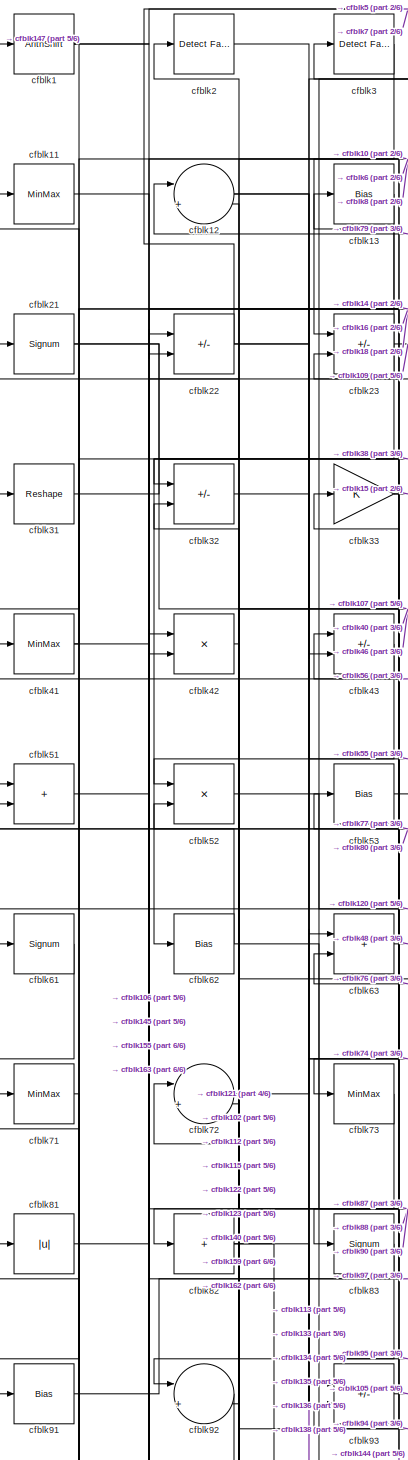
[diagram: root canvas - part 1/6, top left region]
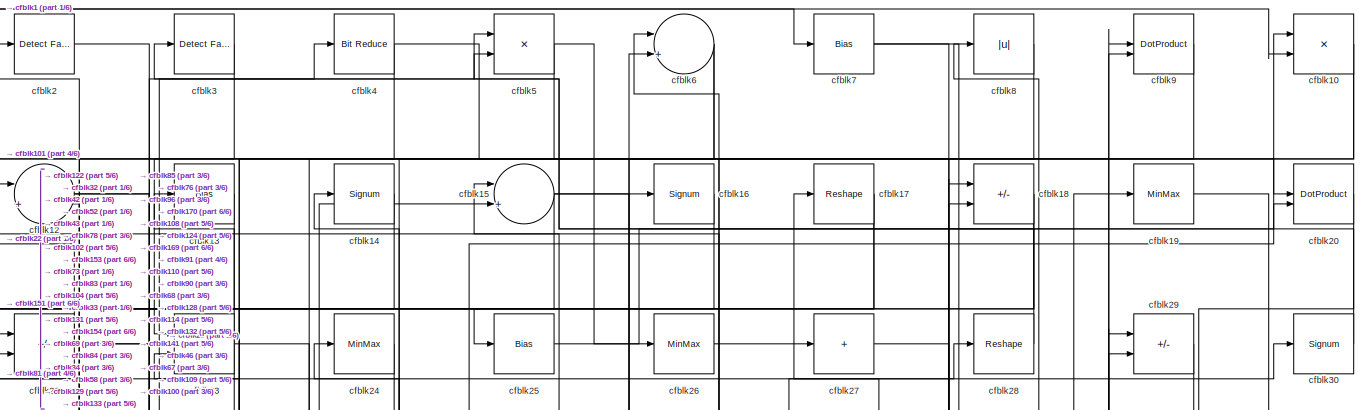
[diagram: root canvas - part 2/6, full width, top band]
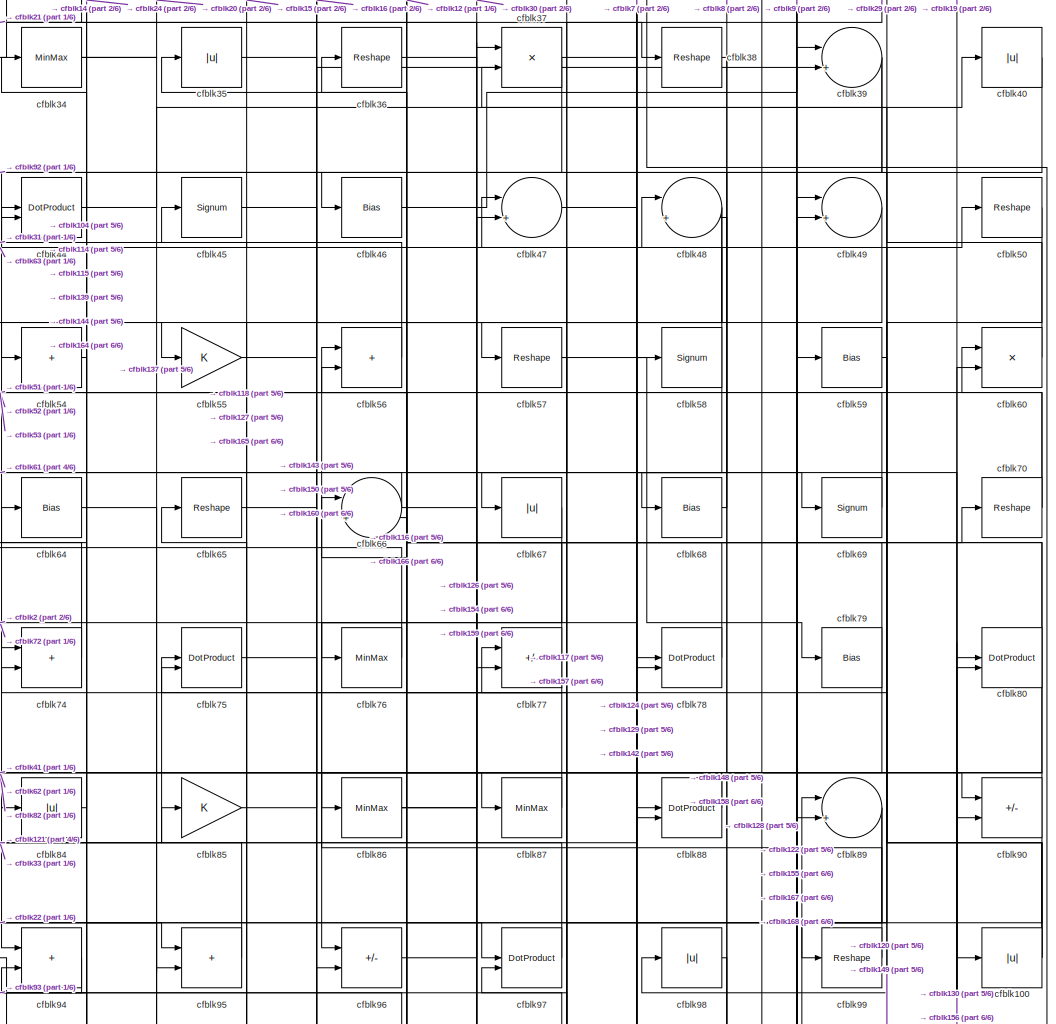
[diagram: root canvas - part 3/6, central region]
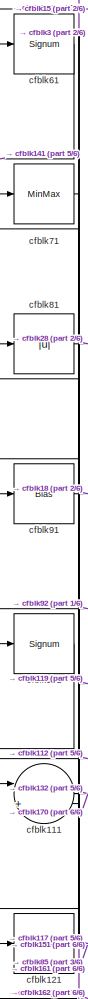
[diagram: root canvas - part 4/6, middle left region]
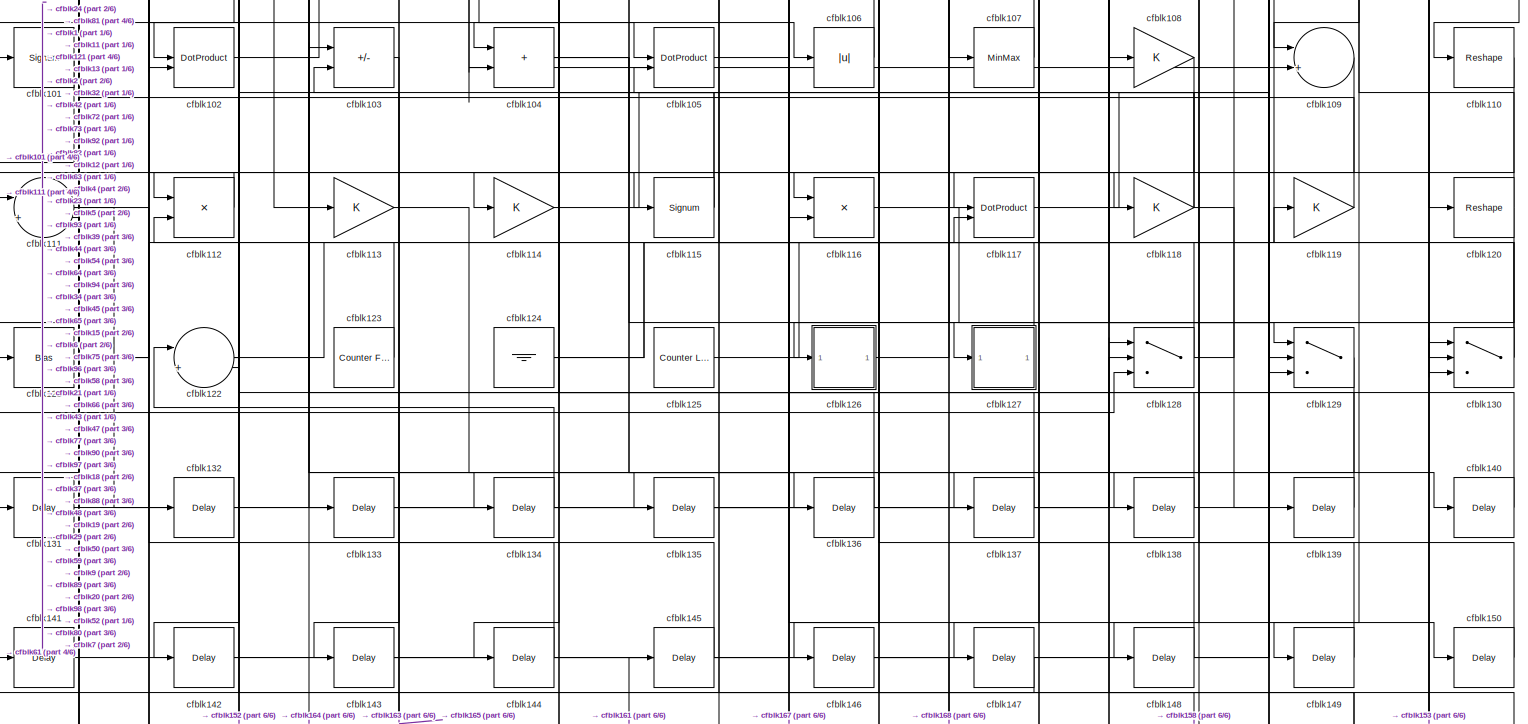
[diagram: root canvas - part 5/6, full width, bottom band]
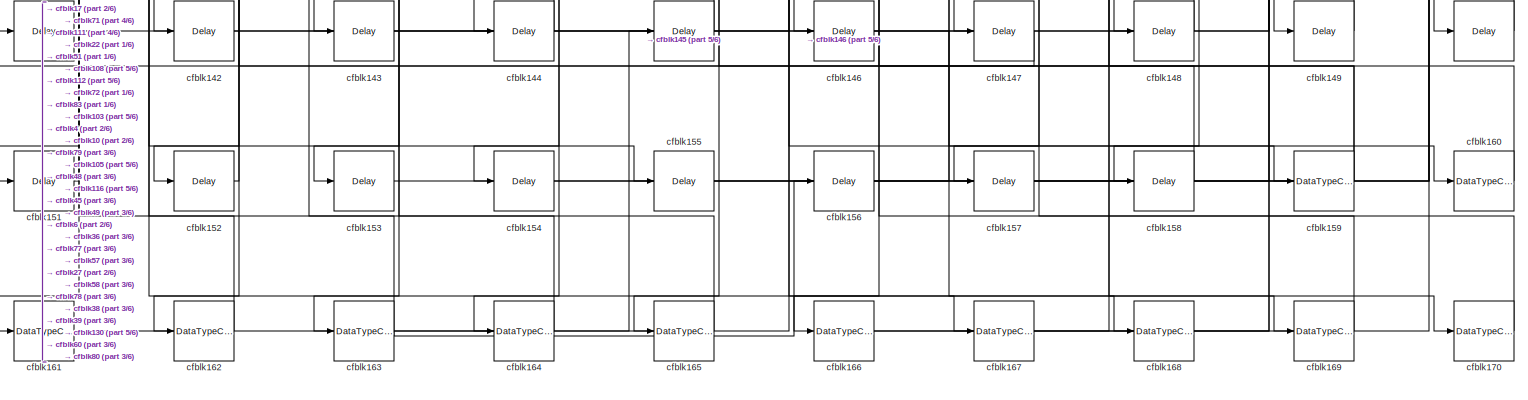
[diagram: root canvas - part 6/6, full width, bottom band]
MODEL slx_be887b28f00f
KIND model
CONFIG AbsTol = auto
CONFIG EnableMultiTasking = off
CONFIG FixedStep = auto
CONFIG MaxStep = auto
CONFIG MinStep = auto
CONFIG RelTol = 1e-3
CONFIG SampleTimeConstraint = Unconstrained
CONFIG SolverName = VariableStepAuto
CONFIG StartTime = 0.0
CONFIG StopTime = 10.0
BLOCK [ArithShift] cfblk1
  BitShiftNumber = 8
  InputPortMap = u0
BLOCK [Product] cfblk10
  Inputs = */
  RndMeth = Zero
  SaturateOnIntegerOverflow = on
BLOCK [Abs] cfblk100
  SaturateOnIntegerOverflow = off
BLOCK [Signum] cfblk101
BLOCK [DotProduct] cfblk102
  OutDataTypeStr = Inherit: Inherit via internal rule
BLOCK [Sum] cfblk103
  IconShape = rectangular
  Inputs = +-
BLOCK [Sum] cfblk104
  IconShape = rectangular
BLOCK [DotProduct] cfblk105
  OutDataTypeStr = Inherit: Inherit via internal rule
BLOCK [Abs] cfblk106
  SaturateOnIntegerOverflow = off
BLOCK [MinMax] cfblk107
BLOCK [Gain] cfblk108
BLOCK [Sum] cfblk109
  Inputs = |++
BLOCK [MinMax] cfblk11
BLOCK [Reshape] cfblk110
BLOCK [Sum] cfblk111
  Inputs = |++
BLOCK [Product] cfblk112
  Inputs = */
  RndMeth = Zero
  SaturateOnIntegerOverflow = on
BLOCK [Gain] cfblk113
BLOCK [Gain] cfblk114
BLOCK [Signum] cfblk115
BLOCK [Product] cfblk116
  Inputs = */
  RndMeth = Zero
  SaturateOnIntegerOverflow = on
BLOCK [DotProduct] cfblk117
  OutDataTypeStr = Inherit: Inherit via internal rule
BLOCK [Gain] cfblk118
BLOCK [Gain] cfblk119
BLOCK [Sum] cfblk12
  Inputs = |++
BLOCK [Reshape] cfblk120
BLOCK [Bias] cfblk121
  Bias = 0.0
  SaturateOnIntegerOverflow = off
BLOCK [Sum] cfblk122
  Inputs = |++
BLOCK [Reference] cfblk123  REF=hdlsllib/Sources/Counter
Free-Running
  SourceBlock = hdlsllib/Sources/Counter\nFree-Running
  SourceType = Counter Free-Running
BLOCK [Ground] cfblk124
BLOCK [Reference] cfblk125  REF=hdlsllib/Sources/Counter
Limited
  SourceBlock = hdlsllib/Sources/Counter\nLimited
  SourceType = Counter Limited
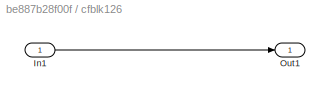
BLOCK [SubSystem] cfblk126
  LibrarySourceBlock = hdlsllib/Ports &\nSubsystems/Subsystem
BLOCK [Inport] cfblk126/In1
BLOCK [Outport] cfblk126/Out1
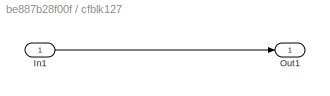
BLOCK [SubSystem] cfblk127
  LibrarySourceBlock = hdlsllib/Ports &\nSubsystems/Subsystem
BLOCK [Inport] cfblk127/In1
BLOCK [Outport] cfblk127/Out1
BLOCK [Switch] cfblk128
  InputSameDT = off
  SaturateOnIntegerOverflow = off
BLOCK [Switch] cfblk129
  InputSameDT = off
  SaturateOnIntegerOverflow = off
BLOCK [Bias] cfblk13
  Bias = 0.0
  SaturateOnIntegerOverflow = off
BLOCK [Switch] cfblk130
  InputSameDT = off
  SaturateOnIntegerOverflow = off
BLOCK [Delay] cfblk131
  InputPortMap = u0
  SampleTime = 1
BLOCK [Delay] cfblk132
  InputPortMap = u0
  SampleTime = 1
BLOCK [Delay] cfblk133
  InputPortMap = u0
  SampleTime = 1
BLOCK [Delay] cfblk134
  InputPortMap = u0
  SampleTime = 1
BLOCK [Delay] cfblk135
  InputPortMap = u0
  SampleTime = 1
BLOCK [Delay] cfblk136
  InputPortMap = u0
  SampleTime = 1
BLOCK [Delay] cfblk137
  InputPortMap = u0
  SampleTime = 1
BLOCK [Delay] cfblk138
  InputPortMap = u0
  SampleTime = 1
BLOCK [Delay] cfblk139
  InputPortMap = u0
  SampleTime = 1
BLOCK [Signum] cfblk14
BLOCK [Delay] cfblk140
  InputPortMap = u0
  SampleTime = 1
BLOCK [Delay] cfblk141
  InputPortMap = u0
  SampleTime = 1
BLOCK [Delay] cfblk142
  InputPortMap = u0
  SampleTime = 1
BLOCK [Delay] cfblk143
  InputPortMap = u0
  SampleTime = 1
BLOCK [Delay] cfblk144
  InputPortMap = u0
  SampleTime = 1
BLOCK [Delay] cfblk145
  InputPortMap = u0
  SampleTime = 1
BLOCK [Delay] cfblk146
  InputPortMap = u0
  SampleTime = 1
BLOCK [Delay] cfblk147
  InputPortMap = u0
  SampleTime = 1
BLOCK [Delay] cfblk148
  InputPortMap = u0
  SampleTime = 1
BLOCK [Delay] cfblk149
  InputPortMap = u0
  SampleTime = 1
BLOCK [Sum] cfblk15
  Inputs = |++
BLOCK [Delay] cfblk150
  InputPortMap = u0
  SampleTime = 1
BLOCK [Delay] cfblk151
  InputPortMap = u0
  SampleTime = 1
BLOCK [Delay] cfblk152
  InputPortMap = u0
  SampleTime = 1
BLOCK [Delay] cfblk153
  InputPortMap = u0
  SampleTime = 1
BLOCK [Delay] cfblk154
  InputPortMap = u0
  SampleTime = 1
BLOCK [Delay] cfblk155
  InputPortMap = u0
  SampleTime = 1
BLOCK [Delay] cfblk156
  InputPortMap = u0
  SampleTime = 1
BLOCK [Delay] cfblk157
  InputPortMap = u0
  SampleTime = 1
BLOCK [Delay] cfblk158
  InputPortMap = u0
  SampleTime = 1
BLOCK [DataTypeConversion] cfblk159
  RndMeth = Floor
  SaturateOnIntegerOverflow = off
BLOCK [Signum] cfblk16
BLOCK [DataTypeConversion] cfblk160
  OutDataTypeStr = uint8
  RndMeth = Floor
  SaturateOnIntegerOverflow = off
BLOCK [DataTypeConversion] cfblk161
  OutDataTypeStr = uint8
  RndMeth = Floor
  SaturateOnIntegerOverflow = off
BLOCK [DataTypeConversion] cfblk162
  OutDataTypeStr = uint8
  RndMeth = Floor
  SaturateOnIntegerOverflow = off
BLOCK [DataTypeConversion] cfblk163
  RndMeth = Floor
  SaturateOnIntegerOverflow = off
BLOCK [DataTypeConversion] cfblk164
  OutDataTypeStr = uint8
  RndMeth = Floor
  SaturateOnIntegerOverflow = off
BLOCK [DataTypeConversion] cfblk165
  OutDataTypeStr = uint8
  RndMeth = Floor
  SaturateOnIntegerOverflow = off
BLOCK [DataTypeConversion] cfblk166
  RndMeth = Floor
  SaturateOnIntegerOverflow = off
BLOCK [DataTypeConversion] cfblk167
  OutDataTypeStr = uint8
  RndMeth = Floor
  SaturateOnIntegerOverflow = off
BLOCK [DataTypeConversion] cfblk168
  OutDataTypeStr = uint8
  RndMeth = Floor
  SaturateOnIntegerOverflow = off
BLOCK [DataTypeConversion] cfblk169
  OutDataTypeStr = uint8
  RndMeth = Floor
  SaturateOnIntegerOverflow = off
BLOCK [Reshape] cfblk17
BLOCK [DataTypeConversion] cfblk170
  OutDataTypeStr = uint8
  RndMeth = Floor
  SaturateOnIntegerOverflow = off
BLOCK [Sum] cfblk18
  IconShape = rectangular
  Inputs = +-
BLOCK [MinMax] cfblk19
BLOCK [Reference] cfblk2  REF=hdlsllib/Logic and Bit
Operations/Detect Fall
Negative
  SourceBlock = hdlsllib/Logic and Bit\nOperations/Detect Fall\nNegative
  SourceType = Detect Fall Negative
BLOCK [DotProduct] cfblk20
  OutDataTypeStr = Inherit: Inherit via internal rule
BLOCK [Signum] cfblk21
BLOCK [Sum] cfblk22
  IconShape = rectangular
  Inputs = +-
BLOCK [Sum] cfblk23
  IconShape = rectangular
  Inputs = +-
BLOCK [MinMax] cfblk24
BLOCK [Bias] cfblk25
  Bias = 0.0
  SaturateOnIntegerOverflow = off
BLOCK [MinMax] cfblk26
BLOCK [Sum] cfblk27
  IconShape = rectangular
  Inputs = +
BLOCK [Reshape] cfblk28
BLOCK [Sum] cfblk29
  IconShape = rectangular
  Inputs = +-
BLOCK [Reference] cfblk3  REF=hdlsllib/Logic and Bit
Operations/Detect Fall
Nonpositive
  SourceBlock = hdlsllib/Logic and Bit\nOperations/Detect Fall\nNonpositive
  SourceType = Detect Fall Nonpositive
BLOCK [Signum] cfblk30
BLOCK [Reshape] cfblk31
BLOCK [Sum] cfblk32
  IconShape = rectangular
  Inputs = +-
BLOCK [Gain] cfblk33
BLOCK [MinMax] cfblk34
BLOCK [Abs] cfblk35
  SaturateOnIntegerOverflow = off
BLOCK [Reshape] cfblk36
BLOCK [Product] cfblk37
  Inputs = */
  RndMeth = Zero
  SaturateOnIntegerOverflow = on
BLOCK [Reshape] cfblk38
BLOCK [Sum] cfblk39
  Inputs = |++
BLOCK [Reference] cfblk4  REF=hdlsllib/Logic and Bit
Operations/Bit Reduce
  SourceBlock = hdlsllib/Logic and Bit\nOperations/Bit Reduce
  SourceType = Bit Reduce
BLOCK [Abs] cfblk40
  SaturateOnIntegerOverflow = off
BLOCK [MinMax] cfblk41
BLOCK [Product] cfblk42
  Inputs = */
  RndMeth = Zero
  SaturateOnIntegerOverflow = on
BLOCK [Sum] cfblk43
  IconShape = rectangular
  Inputs = +-
BLOCK [DotProduct] cfblk44
  OutDataTypeStr = Inherit: Inherit via internal rule
BLOCK [Signum] cfblk45
BLOCK [Bias] cfblk46
  Bias = 0.0
  SaturateOnIntegerOverflow = off
BLOCK [Sum] cfblk47
  Inputs = |++
BLOCK [Sum] cfblk48
  Inputs = |++
BLOCK [Sum] cfblk49
  Inputs = |++
BLOCK [Product] cfblk5
  Inputs = */
  RndMeth = Zero
  SaturateOnIntegerOverflow = on
BLOCK [Reshape] cfblk50
BLOCK [Sum] cfblk51
  IconShape = rectangular
BLOCK [Product] cfblk52
  Inputs = */
  RndMeth = Zero
  SaturateOnIntegerOverflow = on
BLOCK [Bias] cfblk53
  Bias = 0.0
  SaturateOnIntegerOverflow = off
BLOCK [Sum] cfblk54
  IconShape = rectangular
  Inputs = +
BLOCK [Gain] cfblk55
BLOCK [Sum] cfblk56
  IconShape = rectangular
BLOCK [Reshape] cfblk57
BLOCK [Signum] cfblk58
BLOCK [Bias] cfblk59
  Bias = 0.0
  SaturateOnIntegerOverflow = off
BLOCK [Sum] cfblk6
  Inputs = |++
BLOCK [Product] cfblk60
  Inputs = */
  RndMeth = Zero
  SaturateOnIntegerOverflow = on
BLOCK [Signum] cfblk61
BLOCK [Bias] cfblk62
  Bias = 0.0
  SaturateOnIntegerOverflow = off
BLOCK [Sum] cfblk63
  IconShape = rectangular
BLOCK [Bias] cfblk64
  Bias = 0.0
  SaturateOnIntegerOverflow = off
BLOCK [Reshape] cfblk65
BLOCK [Sum] cfblk66
  Inputs = |++
BLOCK [Abs] cfblk67
  SaturateOnIntegerOverflow = off
BLOCK [Bias] cfblk68
  Bias = 0.0
  SaturateOnIntegerOverflow = off
BLOCK [Signum] cfblk69
BLOCK [Bias] cfblk7
  Bias = 0.0
  SaturateOnIntegerOverflow = off
BLOCK [Reshape] cfblk70
BLOCK [MinMax] cfblk71
BLOCK [Sum] cfblk72
  Inputs = |++
BLOCK [MinMax] cfblk73
BLOCK [Sum] cfblk74
  IconShape = rectangular
BLOCK [DotProduct] cfblk75
  OutDataTypeStr = Inherit: Inherit via internal rule
BLOCK [MinMax] cfblk76
BLOCK [Sum] cfblk77
  IconShape = rectangular
  Inputs = +-
BLOCK [DotProduct] cfblk78
  OutDataTypeStr = Inherit: Inherit via internal rule
BLOCK [Bias] cfblk79
  Bias = 0.0
  SaturateOnIntegerOverflow = off
BLOCK [Abs] cfblk8
  SaturateOnIntegerOverflow = off
BLOCK [DotProduct] cfblk80
  OutDataTypeStr = Inherit: Inherit via internal rule
BLOCK [Abs] cfblk81
  SaturateOnIntegerOverflow = off
BLOCK [Sum] cfblk82
  IconShape = rectangular
  Inputs = +
BLOCK [Signum] cfblk83
BLOCK [Abs] cfblk84
  SaturateOnIntegerOverflow = off
BLOCK [Gain] cfblk85
BLOCK [MinMax] cfblk86
BLOCK [MinMax] cfblk87
BLOCK [DotProduct] cfblk88
  OutDataTypeStr = Inherit: Inherit via internal rule
BLOCK [Sum] cfblk89
  Inputs = |++
BLOCK [DotProduct] cfblk9
  OutDataTypeStr = Inherit: Inherit via internal rule
BLOCK [Sum] cfblk90
  IconShape = rectangular
  Inputs = +-
BLOCK [Bias] cfblk91
  Bias = 0.0
  SaturateOnIntegerOverflow = off
BLOCK [Sum] cfblk92
  Inputs = |++
BLOCK [Sum] cfblk93
  IconShape = rectangular
  Inputs = +-
BLOCK [Sum] cfblk94
  IconShape = rectangular
BLOCK [Sum] cfblk95
  IconShape = rectangular
BLOCK [Sum] cfblk96
  IconShape = rectangular
  Inputs = +-
BLOCK [DotProduct] cfblk97
  OutDataTypeStr = Inherit: Inherit via internal rule
BLOCK [Abs] cfblk98
  SaturateOnIntegerOverflow = off
BLOCK [Reshape] cfblk99
NET cfblk100:1 -> cfblk37:2, cfblk44:1, cfblk74:2
LINE cfblk101:1 -> cfblk128:3
LINE cfblk102:1 -> cfblk4:1
LINE cfblk103:1 -> cfblk163:1
NET cfblk104:1 -> cfblk118:1, cfblk140:1
LINE cfblk105:1 -> cfblk167:1
LINE cfblk106:1 -> cfblk21:1
LINE cfblk107:1 -> cfblk43:1
LINE cfblk108:1 -> cfblk152:1
LINE cfblk109:1 -> cfblk138:1
NET cfblk10:1 -> cfblk154:1, cfblk73:1
LINE cfblk110:1 -> cfblk146:1
NET cfblk111:1 -> cfblk132:1, cfblk170:1
LINE cfblk112:1 -> cfblk111:1
LINE cfblk113:1 -> cfblk136:1
LINE cfblk114:1 -> cfblk29:2
NET cfblk115:1 -> cfblk64:1, cfblk72:2
LINE cfblk116:1 -> cfblk129:1
LINE cfblk117:1 -> cfblk50:1
NET cfblk118:1 -> cfblk139:1, cfblk34:1, cfblk65:1
LINE cfblk119:1 -> cfblk81:1
LINE cfblk11:1 -> cfblk115:1
NET cfblk120:1 -> cfblk147:1, cfblk98:1
NET cfblk121:1 -> cfblk117:2, cfblk85:1
NET cfblk122:1 -> cfblk2:1, cfblk59:1
LINE cfblk123:1 -> cfblk32:2
NET cfblk124:1 -> cfblk18:2, cfblk88:1
LINE cfblk125:1 -> cfblk119:1
LINE cfblk126/In1:1 -> cfblk126/Out1:1
LINE cfblk126:1 -> cfblk37:1
LINE cfblk127/In1:1 -> cfblk127/Out1:1
LINE cfblk127:1 -> cfblk45:1
NET cfblk128:1 -> cfblk19:1, cfblk47:1
LINE cfblk129:1 -> cfblk143:1
NET cfblk12:1 -> cfblk134:1, cfblk55:1
NET cfblk130:1 -> cfblk77:1, cfblk89:1
LINE cfblk131:1 -> cfblk128:2
LINE cfblk132:1 -> cfblk29:1
LINE cfblk133:1 -> cfblk6:2
LINE cfblk134:1 -> cfblk122:1
LINE cfblk135:1 -> cfblk128:1
LINE cfblk136:1 -> cfblk93:1
LINE cfblk137:1 -> cfblk94:2
LINE cfblk138:1 -> cfblk63:1
LINE cfblk139:1 -> cfblk44:2
LINE cfblk13:1 -> cfblk102:2
LINE cfblk140:1 -> cfblk92:2
LINE cfblk141:1 -> cfblk9:2
LINE cfblk142:1 -> cfblk89:2
LINE cfblk143:1 -> cfblk96:2
LINE cfblk144:1 -> cfblk23:2
LINE cfblk145:1 -> cfblk42:1
LINE cfblk146:1 -> cfblk168:1
LINE cfblk147:1 -> cfblk1:1
LINE cfblk148:1 -> cfblk97:2
LINE cfblk149:1 -> cfblk66:1
LINE cfblk14:1 -> cfblk52:1
LINE cfblk150:1 -> cfblk48:2
LINE cfblk151:1 -> cfblk111:2
LINE cfblk152:1 -> cfblk112:2
LINE cfblk153:1 -> cfblk130:1
LINE cfblk154:1 -> cfblk77:2
LINE cfblk155:1 -> cfblk39:1
LINE cfblk156:1 -> cfblk60:2
LINE cfblk157:1 -> cfblk80:2
LINE cfblk158:1 -> cfblk105:2
NET cfblk159:1 -> cfblk72:1, cfblk78:1
NET cfblk15:1 -> cfblk129:2, cfblk20:1, cfblk91:1
LINE cfblk160:1 -> cfblk36:1
LINE cfblk161:1 -> cfblk145:1
LINE cfblk162:1 -> cfblk71:1
NET cfblk163:1 -> cfblk116:2, cfblk156:1, cfblk22:1
LINE cfblk164:1 -> cfblk103:1
LINE cfblk165:1 -> cfblk103:2
NET cfblk166:1 -> cfblk58:1, cfblk80:1
LINE cfblk167:1 -> cfblk49:1
LINE cfblk168:1 -> cfblk49:2
LINE cfblk169:1 -> cfblk6:1
LINE cfblk16:1 -> cfblk43:2
LINE cfblk170:1 -> cfblk27:1
NET cfblk17:1 -> cfblk151:1, cfblk25:1
NET cfblk18:1 -> cfblk22:2, cfblk83:1
LINE cfblk19:1 -> cfblk100:1
NET cfblk1:1 -> cfblk106:1, cfblk10:2, cfblk41:1
LINE cfblk20:1 -> cfblk109:1
NET cfblk21:1 -> cfblk107:1, cfblk46:1
NET cfblk22:1 -> cfblk5:2, cfblk7:1, cfblk95:1
NET cfblk23:1 -> cfblk109:2, cfblk13:1, cfblk62:1
LINE cfblk24:1 -> cfblk131:1
LINE cfblk25:1 -> cfblk10:1
LINE cfblk26:1 -> cfblk17:1
LINE cfblk27:1 -> cfblk169:1
LINE cfblk28:1 -> cfblk5:1
LINE cfblk29:1 -> cfblk67:1
LINE cfblk2:1 -> cfblk78:2
LINE cfblk30:1 -> cfblk3:1
LINE cfblk31:1 -> cfblk38:1
LINE cfblk32:1 -> cfblk133:1
NET cfblk33:1 -> cfblk15:2, cfblk95:2
NET cfblk34:1 -> cfblk137:1, cfblk20:2
LINE cfblk35:1 -> cfblk57:1
LINE cfblk36:1 -> cfblk159:1
NET cfblk37:1 -> cfblk129:3, cfblk142:1
LINE cfblk38:1 -> cfblk158:1
NET cfblk39:1 -> cfblk104:1, cfblk68:1
LINE cfblk3:1 -> cfblk101:1
LINE cfblk40:1 -> cfblk92:1
NET cfblk41:1 -> cfblk11:1, cfblk90:1
LINE cfblk42:1 -> cfblk122:2
LINE cfblk43:1 -> cfblk112:1
LINE cfblk44:1 -> cfblk40:1
LINE cfblk45:1 -> cfblk160:1
LINE cfblk46:1 -> cfblk9:1
LINE cfblk47:1 -> cfblk69:1
NET cfblk48:1 -> cfblk165:1, cfblk54:1
LINE cfblk49:1 -> cfblk166:1
NET cfblk4:1 -> cfblk108:1, cfblk153:1
LINE cfblk50:1 -> cfblk149:1
LINE cfblk51:1 -> cfblk155:1
LINE cfblk52:1 -> cfblk120:1
LINE cfblk53:1 -> cfblk97:1
LINE cfblk54:1 -> cfblk114:1
LINE cfblk55:1 -> cfblk39:2
LINE cfblk56:1 -> cfblk31:1
NET cfblk57:1 -> cfblk157:1, cfblk79:1
NET cfblk58:1 -> cfblk116:1, cfblk15:1
LINE cfblk59:1 -> cfblk99:1
NET cfblk5:1 -> cfblk104:2, cfblk26:1
LINE cfblk60:1 -> cfblk94:1
LINE cfblk61:1 -> cfblk141:1
NET cfblk62:1 -> cfblk51:2, cfblk87:1
LINE cfblk63:1 -> cfblk48:1
LINE cfblk64:1 -> cfblk127:1
LINE cfblk65:1 -> cfblk88:2
NET cfblk66:1 -> cfblk130:2, cfblk61:1
LINE cfblk67:1 -> cfblk86:1
LINE cfblk68:1 -> cfblk8:1
LINE cfblk69:1 -> cfblk24:1
NET cfblk6:1 -> cfblk32:1, cfblk42:2
NET cfblk70:1 -> cfblk56:2, cfblk60:1
LINE cfblk71:1 -> cfblk161:1
LINE cfblk72:1 -> cfblk74:1
LINE cfblk73:1 -> cfblk102:1
LINE cfblk74:1 -> cfblk12:2
LINE cfblk75:1 -> cfblk150:1
LINE cfblk76:1 -> cfblk63:2
NET cfblk77:1 -> cfblk53:1, cfblk75:2
LINE cfblk78:1 -> cfblk35:1
NET cfblk79:1 -> cfblk12:1, cfblk164:1
NET cfblk7:1 -> cfblk110:1, cfblk90:2
NET cfblk80:1 -> cfblk130:3, cfblk51:1, cfblk52:2, cfblk96:1
LINE cfblk81:1 -> cfblk28:1
NET cfblk82:1 -> cfblk113:1, cfblk135:1
LINE cfblk83:1 -> cfblk162:1
LINE cfblk84:1 -> cfblk14:1
LINE cfblk85:1 -> cfblk16:1
NET cfblk86:1 -> cfblk47:2, cfblk70:1
LINE cfblk87:1 -> cfblk66:2
LINE cfblk88:1 -> cfblk82:1
NET cfblk89:1 -> cfblk126:1, cfblk144:1
LINE cfblk8:1 -> cfblk23:1
NET cfblk90:1 -> cfblk117:1, cfblk84:1
LINE cfblk91:1 -> cfblk18:1
LINE cfblk92:1 -> cfblk121:1
LINE cfblk93:1 -> cfblk105:1
LINE cfblk94:1 -> cfblk93:2
LINE cfblk95:1 -> cfblk75:1
LINE cfblk96:1 -> cfblk30:1
LINE cfblk97:1 -> cfblk33:1
LINE cfblk98:1 -> cfblk148:1
LINE cfblk99:1 -> cfblk56:1
LINE cfblk9:1 -> cfblk76:1
note: NET lines group one-source signal fan-out (src -> all destinations, sorted); 1:1 wires keep LINE
